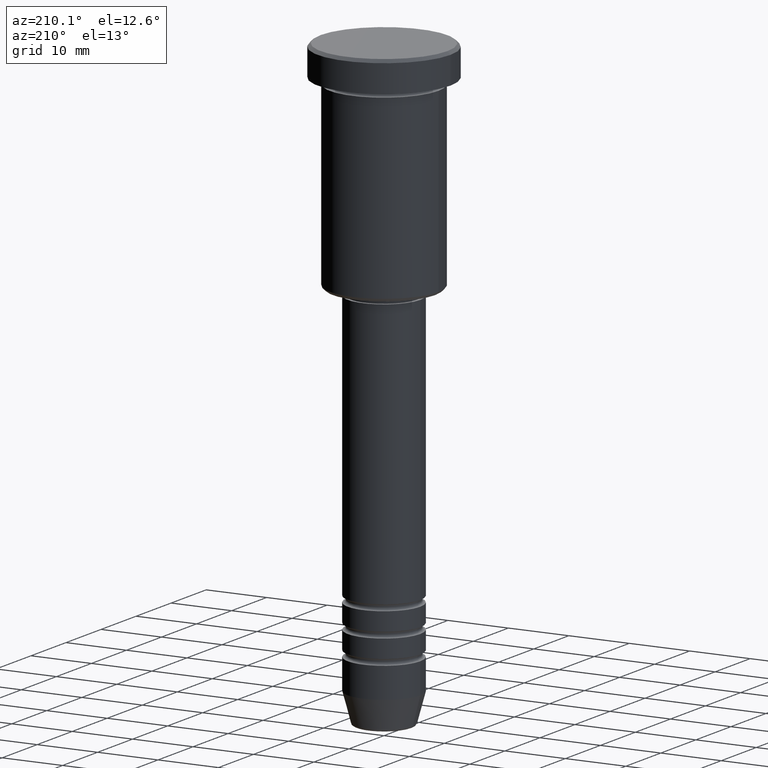
[diagram: clean part render]
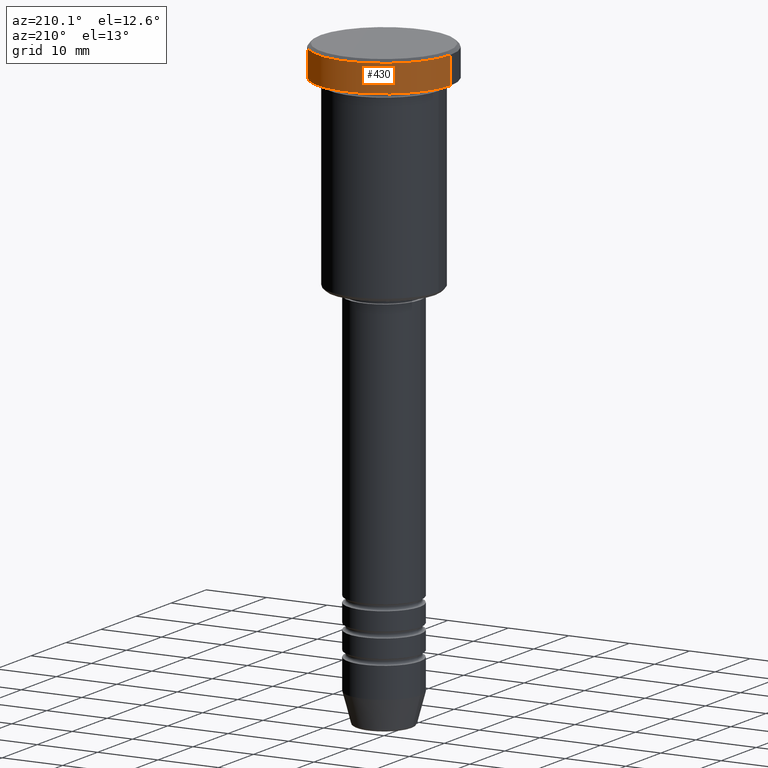
[diagram: same view with one face highlighted and labeled with its STEP entity id]
A machine part, auxiliary view. The second image highlights one B-rep face of the part: STEP entity #430.
In plain terms, the highlighted cylindrical surface (partial cylindrical patch) has radius 11 mm, axis along (-0, -0, 1).
Its self-contained STEP definition (entity closure, byte-faithful):
#10 = AXIS2_PLACEMENT_3D ( 'NONE', #209, #247, #799 ) ;
#15 = VECTOR ( 'NONE', #168, 1000.000000000000000 ) ;
#45 = EDGE_CURVE ( 'NONE', #515, #277, #548, .T. ) ;
#122 = ORIENTED_EDGE ( 'NONE', *, *, #45, .T. ) ;
#162 = CIRCLE ( 'NONE', #496, 11.00000000000000000 ) ;
#166 = ORIENTED_EDGE ( 'NONE', *, *, #244, .T. ) ;
#168 = DIRECTION ( 'NONE',  ( -0.000000000000000000, -0.000000000000000000, 1.000000000000000000 ) ) ;
#209 = CARTESIAN_POINT ( 'NONE',  ( 0.000000000000000000, 0.000000000000000000, -0.5000000000000022204 ) ) ;
#214 = ORIENTED_EDGE ( 'NONE', *, *, #262, .T. ) ;
#244 = EDGE_CURVE ( 'NONE', #622, #466, #162, .T. ) ;
#247 = DIRECTION ( 'NONE',  ( 0.000000000000000000, 0.000000000000000000, -1.000000000000000000 ) ) ;
#262 = EDGE_CURVE ( 'NONE', #466, #515, #705, .T. ) ;
#277 = VERTEX_POINT ( 'NONE', #523 ) ;
#294 = DIRECTION ( 'NONE',  ( -0.000000000000000000, -0.000000000000000000, 1.000000000000000000 ) ) ;
#297 = EDGE_LOOP ( 'NONE', ( #166, #214, #122, #487 ) ) ;
#359 = AXIS2_PLACEMENT_3D ( 'NONE', #587, #951, #495 ) ;
#430 = ADVANCED_FACE ( 'NONE', ( #661 ), #765, .T. ) ;
#440 = LINE ( 'NONE', #896, #15 ) ;
#466 = VERTEX_POINT ( 'NONE', #870 ) ;
#487 = ORIENTED_EDGE ( 'NONE', *, *, #654, .F. ) ;
#495 = DIRECTION ( 'NONE',  ( 1.000000000000000000, 0.000000000000000000, 0.000000000000000000 ) ) ;
#496 = AXIS2_PLACEMENT_3D ( 'NONE', #665, #294, #769 ) ;
#515 = VERTEX_POINT ( 'NONE', #778 ) ;
#523 = CARTESIAN_POINT ( 'NONE',  ( 11.00000000000000178, 0.000000000000000000, -0.5000000000000022204 ) ) ;
#541 = CARTESIAN_POINT ( 'NONE',  ( 11.00000000000000000, 0.000000000000000000, -5.000000000000000000 ) ) ;
#548 = CIRCLE ( 'NONE', #10, 11.00000000000000178 ) ;
#587 = CARTESIAN_POINT ( 'NONE',  ( 0.000000000000000000, 0.000000000000000000, 0.000000000000000000 ) ) ;
#622 = VERTEX_POINT ( 'NONE', #541 ) ;
#654 = EDGE_CURVE ( 'NONE', #622, #277, #440, .T. ) ;
#661 = FACE_OUTER_BOUND ( 'NONE', #297, .T. ) ;
#665 = CARTESIAN_POINT ( 'NONE',  ( 0.000000000000000000, 0.000000000000000000, -5.000000000000000000 ) ) ;
#705 = LINE ( 'NONE', #801, #761 ) ;
#761 = VECTOR ( 'NONE', #1072, 1000.000000000000000 ) ;
#765 = CYLINDRICAL_SURFACE ( 'NONE', #359, 11.00000000000000178 ) ;
#769 = DIRECTION ( 'NONE',  ( 1.000000000000000000, 0.000000000000000000, 0.000000000000000000 ) ) ;
#778 = CARTESIAN_POINT ( 'NONE',  ( -11.00000000000000178, 1.347111479062088602E-15, -0.5000000000000022204 ) ) ;
#799 = DIRECTION ( 'NONE',  ( 1.000000000000000000, 0.000000000000000000, 0.000000000000000000 ) ) ;
#801 = CARTESIAN_POINT ( 'NONE',  ( -11.00000000000000178, 1.347111479062088602E-15, 0.000000000000000000 ) ) ;
#870 = CARTESIAN_POINT ( 'NONE',  ( -11.00000000000000000, 1.347111479062088602E-15, -5.000000000000000000 ) ) ;
#896 = CARTESIAN_POINT ( 'NONE',  ( 11.00000000000000178, 0.000000000000000000, 0.000000000000000000 ) ) ;
#951 = DIRECTION ( 'NONE',  ( -0.000000000000000000, -0.000000000000000000, 1.000000000000000000 ) ) ;
#1072 = DIRECTION ( 'NONE',  ( -0.000000000000000000, -0.000000000000000000, 1.000000000000000000 ) ) ;